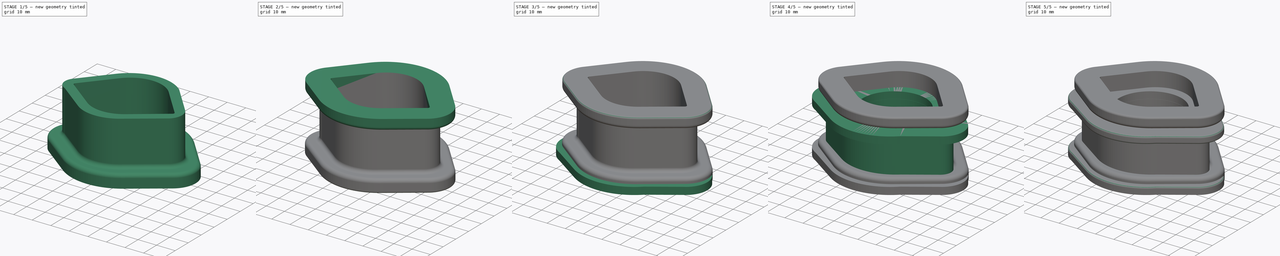
[diagram: build sequence overview — one tinted view per stage of 5, left to right]
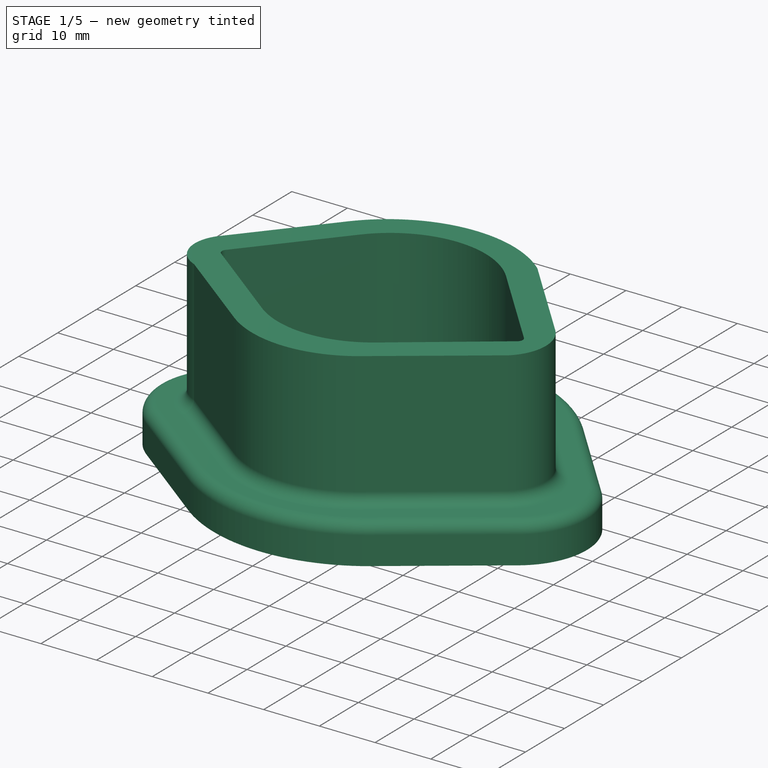
[diagram: stage 1 of 5 — iso view after this stage's code; geometry added in this stage tinted green]
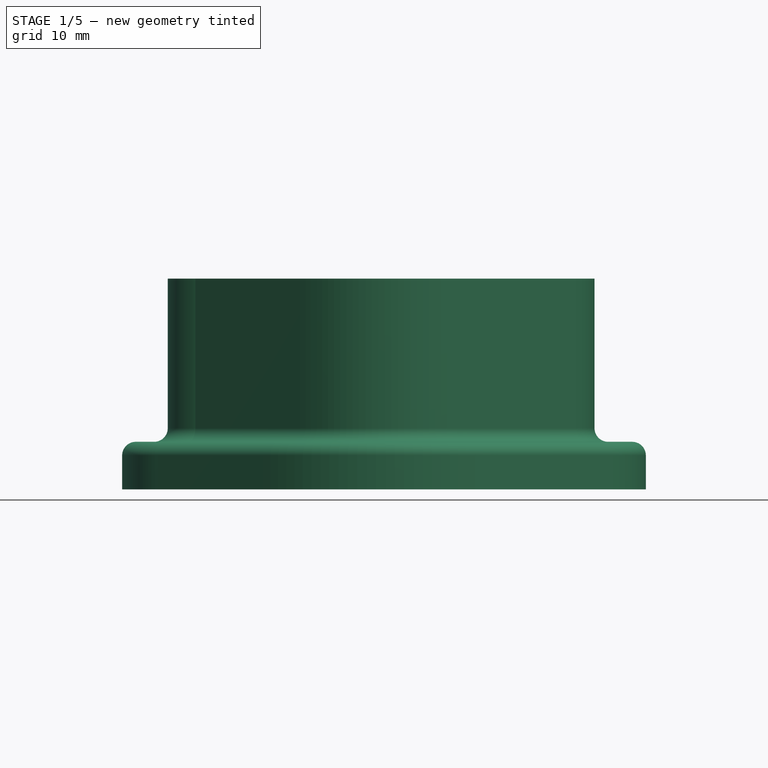
[diagram: stage 1 of 5 — front view after this stage's code; geometry added in this stage tinted green]
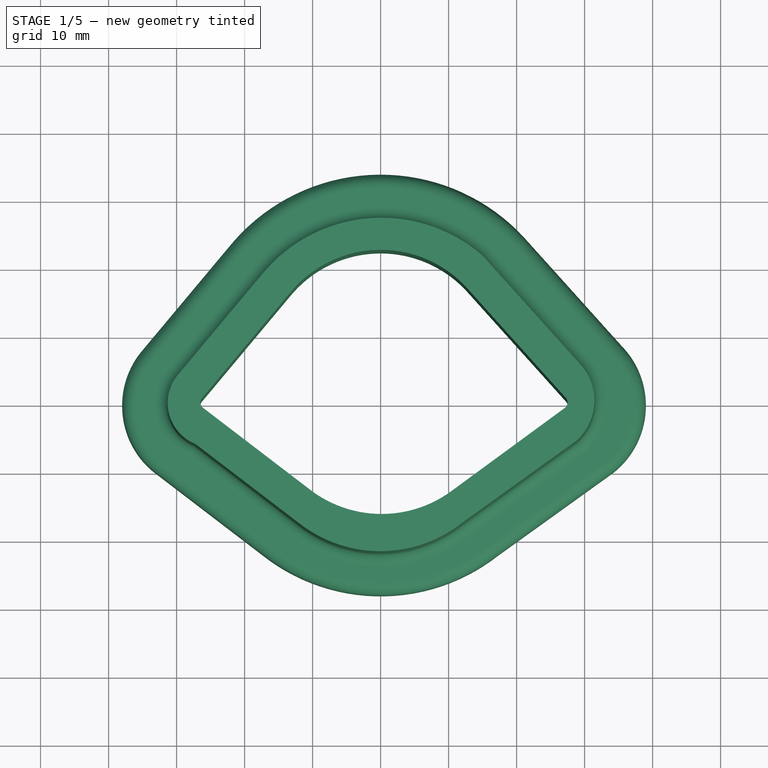
[diagram: stage 1 of 5 — top view after this stage's code; geometry added in this stage tinted green]
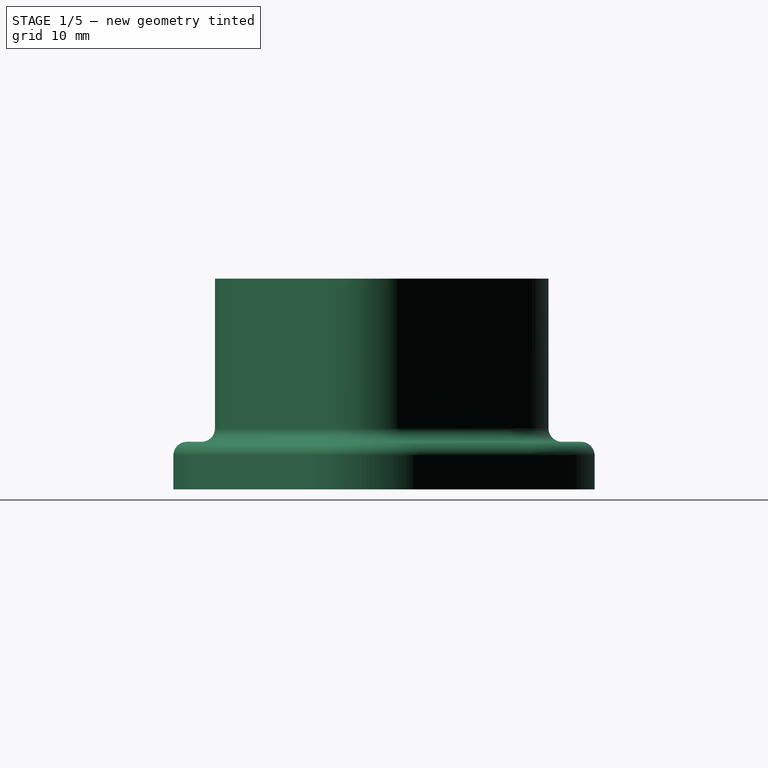
[diagram: stage 1 of 5 — right view after this stage's code; geometry added in this stage tinted green]
FCSTD DOCUMENT  (FreeCAD 1.0R39109 (Git))
Label: 14-703-BL NIS RACK & PINION 74-78 260,280Z
License: All rights reserved
LicenseURL: https://en.wikipedia.org/wiki/All_rights_reserved
objects: PartDesign::Fillet×7, Sketcher::SketchObject×5, PartDesign::Pad×5, PartDesign::Body×3, PartDesign::Hole×1, PartDesign::FeatureBase×1, PartDesign::Boolean×1
note: 56 computed .brp shape members not serialized (recipe doc carries the construction recipe); baked Part::Feature solids carry a one-line shape summary decoded from their .brp

FEATURE [PartDesign::Body] Body  label="Bushing 1"
  AllowCompound = false
  Group = -> [Sketch,Pad,Sketch001,Pad001,Hole,Boolean,Fillet,Fillet001,Fillet002]
  Origin = -> Origin
  Tip = -> Fillet002
FEATURE [Sketcher::SketchObject] Sketch003
  ArcFitTolerance = 1e-06
  AttachmentSupport = -> [XY_Plane002]
  FullyConstrained = false
  MakeInternals = false
  MapMode = 5
  sketch-geometry (16):
    g0: ArcOfCircle CenterX=0 CenterY=5.26 CenterZ=0 NormalX=0 NormalY=0 NormalZ=1 AngleXU=0 Radius=17.185 StartAngle=0.732514 EndAngle=2.44503
    g1: ArcOfCircle CenterX=0 CenterY=1.39 CenterZ=0 NormalX=0 NormalY=0 NormalZ=1 AngleXU=0 Radius=17.595 StartAngle=4.0595 EndAngle=5.33559
    g2: ArcOfCircle CenterX=-25.5 CenterY=0 CenterZ=0 NormalX=0 NormalY=0 NormalZ=1 AngleXU=0 Radius=1 StartAngle=2.44503 EndAngle=4.0595
    g3: ArcOfCircle CenterX=26.5 CenterY=0 CenterZ=0 NormalX=0 NormalY=0 NormalZ=1 AngleXU=0 Radius=1 StartAngle=5.33559 EndAngle=7.02508
    g4: LineSegment StartX=-26.267 StartY=0.641588 StartZ=0 EndX=-13.1817 EndY=16.2857 EndZ=0
    g5: LineSegment StartX=-26.1075 StartY=-0.794331 StartZ=0 EndX=-10.6887 EndY=-12.5862 EndZ=0
    g6: LineSegment StartX=10.269 StartY=-12.8974 StartZ=0 EndX=27.0836 EndY=-0.812017 EndZ=0
    g7: LineSegment StartX=27.2372 StartY=0.675687 StartZ=0 EndX=12.777 EndY=16.7523 EndZ=0
    g8: LineSegment StartX=-35.3614 StartY=7.69315 StartZ=0 EndX=-22.2761 EndY=23.3373 EndZ=0
    g9: LineSegment StartX=21.0423 StartY=24.7595 StartZ=0 EndX=35.5025 EndY=8.68289 EndZ=0
    g10: LineSegment StartX=34.1479 StartY=-9.89689 StartZ=0 EndX=17.3333 EndY=-21.9823 EndZ=0
    g11: LineSegment StartX=-32.7552 StartY=-10.1879 StartZ=0 EndX=-17.3365 EndY=-21.9798 EndZ=0
    g12: ArcOfCircle CenterX=0 CenterY=5.26 CenterZ=0 NormalX=0 NormalY=0 NormalZ=1 AngleXU=0 Radius=28.6882 StartAngle=0.747362 EndAngle=2.45987
    g13: ArcOfCircle CenterX=-25.5 CenterY=0 CenterZ=0 NormalX=0 NormalY=0 NormalZ=1 AngleXU=0 Radius=12.5073 StartAngle=2.47909 EndAngle=4.09356
    g14: ArcOfCircle CenterX=0 CenterY=0 CenterZ=0 NormalX=0 NormalY=0 NormalZ=1 AngleXU=0 Radius=27.994 StartAngle=4.04455 EndAngle=5.38008
    g15: ArcOfCircle CenterX=26.5 CenterY=0 CenterZ=0 NormalX=0 NormalY=0 NormalZ=1 AngleXU=0 Radius=12.5075 StartAngle=5.3703 EndAngle=7.05051
  constraints (44):
    c: PointOnObject(g2,g-1)
    c: PointOnObject(g3,g-1)
    c: Vertical(g-1,g1)
    c: Vertical(g0,g1)
    c: DistanceX(g2,g-1) = 25.5
    c: DistanceX(g-1,g3) = 26.5
    c: DistanceY(g1,g0) = 3.87
    c: Diameter(g1) = 35.19
    c: Diameter(g0) = 34.37
    c: Diameter(g2) = 2
    c: Diameter(g3) = 2
    c: Distance(g1,g-1) = 1.39
    c: Tangent(g1,g5) = -1.5708
    c: Tangent(g0,g4) = 1.5708
    c: Tangent(g0,g7) = -1.5708
    c: Tangent(g1,g6) = -1.5708
    c: Parallel(g8,g4)
    c: Parallel(g5,g11)
    c: Parallel(g9,g7)
    c: Parallel(g10,g6)
    c: Equal(g8,g4)
    c: Equal(g9,g7)
    c: Equal(g6,g10)
    c: Equal(g11,g5)
    c: Coincident(g3,g7)
    c: Tangent(g3,g6) = -1.5708
    c: Tangent(g2,g5) = -1.5708
    c: Tangent(g2,g4) = 1.5708
    c: Distance(g4,g8) = 11.5
    c: Distance(g11,g5) = 11.5
    c: Distance(g10,g6) = 11.5
    c: Distance(g7,g9) = 11.5
    c: Coincident(g12,g0)
    c: Coincident(g12,g8)
    c: Coincident(g12,g9)
    c: Coincident(g13,g2)
    c: Coincident(g13,g11)
    c: Coincident(g13,g8)
    c: Coincident(g14,g-1)
    c: Coincident(g14,g11)
    c: Coincident(g14,g10)
    c: Coincident(g15,g3)
    c: Coincident(g15,g9)
    c: Coincident(g15,g10)
FEATURE [PartDesign::Pad] Pad002
  Direction = (0,0,1)
  Length = 7
  Length2 = 10
  Profile = -> Sketch003
  ReferenceAxis = -> Sketch003 [N_Axis]
  Refine = true
  Suppressed = false
  Type = 0
FEATURE [Sketcher::SketchObject] Sketch005
  ArcFitTolerance = 1e-06
  AttachmentSupport = -> [Pad002]
  ExternalGeometry = -> [Pad002]
  FullyConstrained = false
  MakeInternals = false
  MapMode = 5
  Placement = pos=(0,0,7) rot=(0,0,1;0rad)
  sketch-geometry (16):
    g0: LineSegment StartX=-29.7959 StartY=4.05995 StartZ=0 EndX=-17.2617 EndY=19.0452 EndZ=0
    g1: LineSegment StartX=14.9729 StartY=21.6381 StartZ=0 EndX=29.4332 EndY=5.56143 EndZ=0
    g2: LineSegment StartX=28.8211 StartY=-5.59756 StartZ=0 EndX=12.0065 EndY=-17.683 EndZ=0
    g3: LineSegment StartX=-11.825 StartY=-17.886 StartZ=0 EndX=-27.2438 EndY=-6.09404 EndZ=0
    g4: ArcOfCircle CenterX=-24.8338 CenterY=-0.0905718 CenterZ=0 NormalX=0 NormalY=0 NormalZ=1 AngleXU=0 Radius=6.46913 StartAngle=2.44503 EndAngle=4.33065
    g5: ArcOfCircle CenterX=0.130029 CenterY=4.4981 CenterZ=0 NormalX=0 NormalY=0 NormalZ=1 AngleXU=0 Radius=22.6736 StartAngle=0.857096 EndAngle=2.44503
    g6: ArcOfCircle CenterX=23.5689 CenterY=0.286791 CenterZ=0 NormalX=0 NormalY=0 NormalZ=1 AngleXU=0 Radius=7.88742 StartAngle=5.44109 EndAngle=7.0157
    g7: ArcOfCircle CenterX=-0.0396243 CenterY=-2.47574 CenterZ=0 NormalX=0 NormalY=0 NormalZ=1 AngleXU=0 Radius=19.4003 StartAngle=4.0595 EndAngle=5.38231
    g8: LineSegment StartX=-26.267 StartY=0.641588 StartZ=0 EndX=-13.1817 EndY=16.2857 EndZ=0
    g9: ArcOfCircle CenterX=-1.024e-13 CenterY=5.26 CenterZ=0 NormalX=0 NormalY=0 NormalZ=1 AngleXU=0 Radius=17.185 StartAngle=0.732514 EndAngle=2.44503
    g10: LineSegment StartX=12.777 StartY=16.7523 StartZ=0 EndX=27.2372 EndY=0.675687 EndZ=0
    g11: ArcOfCircle CenterX=26.4874 CenterY=0.00129896 CenterZ=0 NormalX=0 NormalY=0 NormalZ=1 AngleXU=0 Radius=1.00844 StartAngle=5.34497 EndAngle=7.0157
    g12: LineSegment StartX=27.0836 StartY=-0.812017 StartZ=0 EndX=10.3839 EndY=-13.0541 EndZ=0
    g13: ArcOfCircle CenterX=0.152286 CenterY=0.903016 CenterZ=0 NormalX=0 NormalY=0 NormalZ=1 AngleXU=0 Radius=17.3057 StartAngle=4.03541 EndAngle=5.34497
    g14: LineSegment StartX=-10.6887 StartY=-12.5862 StartZ=0 EndX=-26.1075 EndY=-0.794331 EndZ=0
    g15: ArcOfCircle CenterX=-25.5 CenterY=-1.609e-13 CenterZ=0 NormalX=0 NormalY=0 NormalZ=1 AngleXU=0 Radius=1 StartAngle=2.44503 EndAngle=4.0595
  constraints (21):
    c: Tangent(g0,g4) = 1.5708
    c: Coincident(g4,g3)
    c: Tangent(g0,g5) = 1.5708
    c: Coincident(g5,g1)
    c: Tangent(g1,g6) = 1.5708
    c: Coincident(g6,g2)
    c: Tangent(g3,g7) = 1.5708
    c: Coincident(g7,g2)
    c: Tangent(g8,g9) = 1.5708
    c: Coincident(g9,g-4)
    c: Coincident(g9,g10)
    c: Coincident(g10,g-5)
    c: Tangent(g10,g11) = 1.5708
    c: Coincident(g11,g-6)
    c: Tangent(g11,g12) = 1.5708
    c: Tangent(g12,g13) = 1.5708
    c: Coincident(g13,g-8)
    c: Coincident(g13,g14)
    c: Coincident(g14,g-9)
    c: Tangent(g14,g15) = 1.5708
    c: Coincident(g15,g8)
FEATURE [PartDesign::Pad] Pad003
  BaseFeature = -> Pad002
  Direction = (0,0,1)
  Length = 24
  Length2 = 10
  Profile = -> Sketch005
  ReferenceAxis = -> Sketch005 [N_Axis]
  Refine = true
  Suppressed = false
  Type = 0
FEATURE [PartDesign::Fillet] Fillet003
  Base = -> Pad003 [Face5]
  BaseFeature = -> Pad003
  Radius = 2
  Refine = true
  SupportTransform = false
  Suppressed = false
  UseAllEdges = false
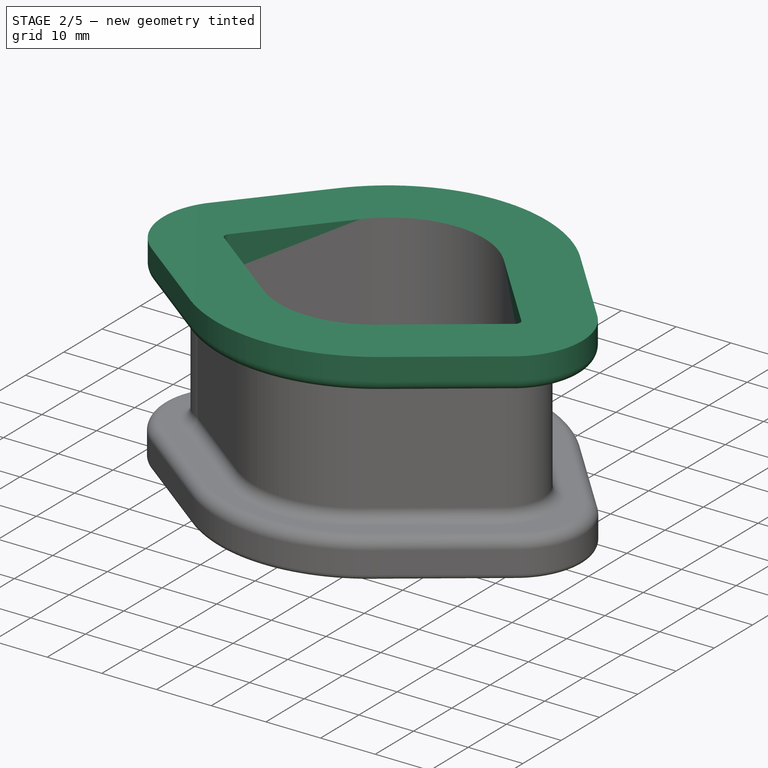
[diagram: stage 2 of 5 — iso view after this stage's code; geometry added in this stage tinted green]
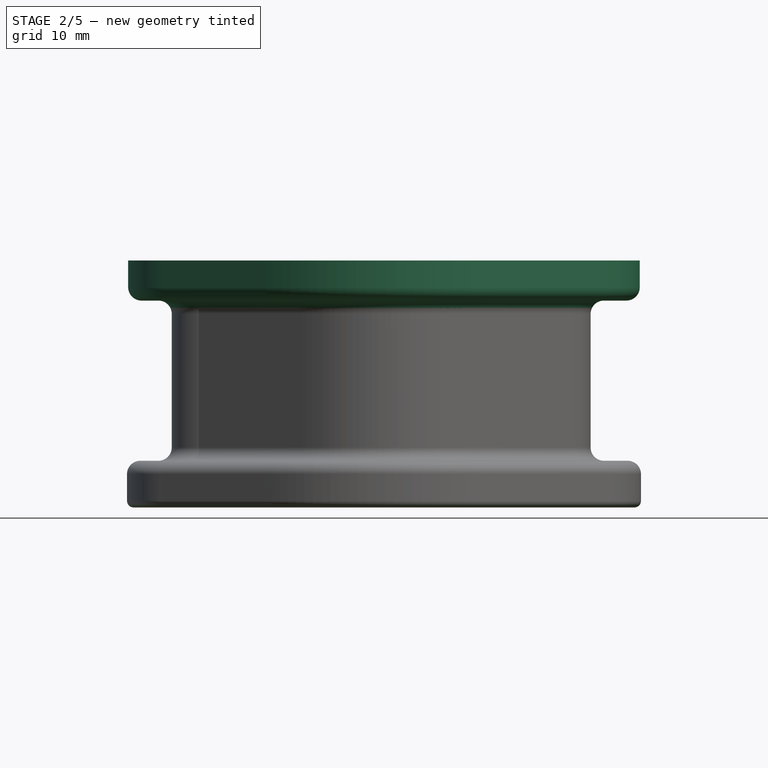
[diagram: stage 2 of 5 — front view after this stage's code; geometry added in this stage tinted green]
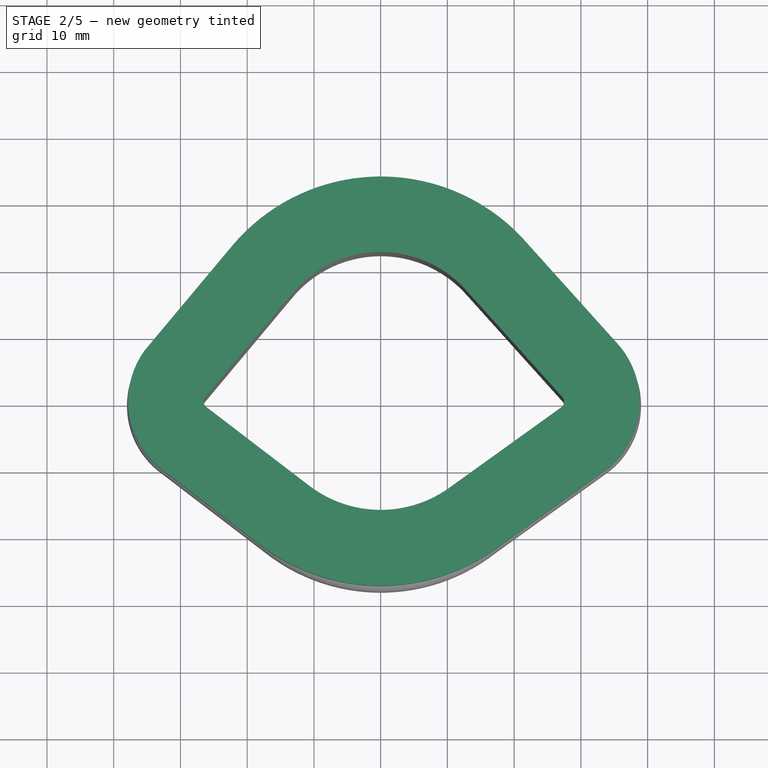
[diagram: stage 2 of 5 — top view after this stage's code; geometry added in this stage tinted green]
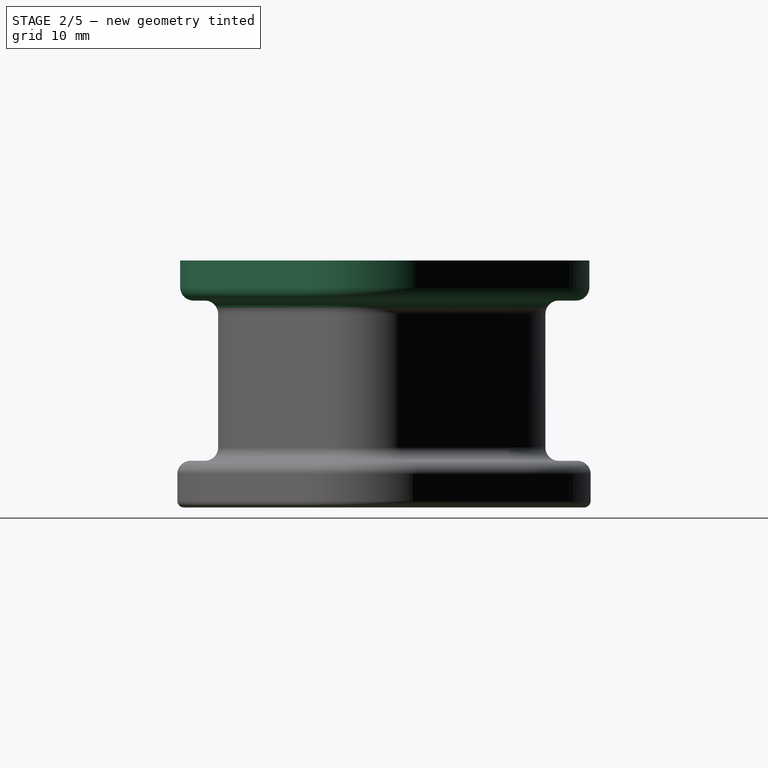
[diagram: stage 2 of 5 — right view after this stage's code; geometry added in this stage tinted green]
FEATURE [PartDesign::Fillet] Fillet004
  Base = -> Fillet003 [Edge14]
  BaseFeature = -> Fillet003
  Radius = 1
  Refine = true
  SupportTransform = false
  Suppressed = false
  UseAllEdges = false
FEATURE [Sketcher::SketchObject] Sketch006
  ArcFitTolerance = 1e-06
  AttachmentSupport = -> [Fillet004]
  ExternalGeometry = -> [Sketch003]
  FullyConstrained = false
  MakeInternals = false
  MapMode = 5
  Placement = pos=(0,0,31) rot=(0,0,1;0rad)
  sketch-geometry (16):
    g0: LineSegment StartX=-35.3614 StartY=7.69315 StartZ=0 EndX=-22.2761 EndY=23.3373 EndZ=0
    g1: ArcOfCircle CenterX=0.0187464 CenterY=4.68904 CenterZ=0 NormalX=0 NormalY=0 NormalZ=1 AngleXU=0 Radius=29.0657 StartAngle=0.762209 EndAngle=2.44503
    g2: LineSegment StartX=21.0423 StartY=24.7595 StartZ=0 EndX=35.5025 EndY=8.68289 EndZ=0
    g3: ArcOfCircle CenterX=25.8979 CenterY=0.043902 CenterZ=0 NormalX=0 NormalY=0 NormalZ=1 AngleXU=0 Radius=12.9183 StartAngle=5.40511 EndAngle=7.0157
    g4: LineSegment StartX=34.1479 StartY=-9.89689 StartZ=0 EndX=17.3333 EndY=-21.9823 EndZ=0
    g5: ArcOfCircle CenterX=0.000154501 CenterY=2.13348 CenterZ=0 NormalX=0 NormalY=0 NormalZ=1 AngleXU=0 Radius=29.6986 StartAngle=4.08905 EndAngle=5.33559
    g6: LineSegment StartX=-17.3365 StartY=-21.9798 StartZ=0 EndX=-32.7552 EndY=-10.1879 EndZ=0
    g7: ArcOfCircle CenterX=-24.8965 CenterY=0.0879565 CenterZ=0 NormalX=0 NormalY=0 NormalZ=1 AngleXU=0 Radius=12.9365 StartAngle=2.51315 EndAngle=4.0595
    g8: LineSegment StartX=-26.267 StartY=0.641588 StartZ=0 EndX=-13.1817 EndY=16.2857 EndZ=0
    g9: ArcOfCircle CenterX=-6.82e-14 CenterY=5.26 CenterZ=0 NormalX=0 NormalY=0 NormalZ=1 AngleXU=0 Radius=17.185 StartAngle=0.732514 EndAngle=2.44503
    g10: LineSegment StartX=12.777 StartY=16.7523 StartZ=0 EndX=27.2372 EndY=0.675694 EndZ=0
    g11: ArcOfCircle CenterX=26.4874 CenterY=0.00130033 CenterZ=0 NormalX=0 NormalY=0 NormalZ=1 AngleXU=0 Radius=1.00845 StartAngle=5.34498 EndAngle=7.0157
    g12: LineSegment StartX=27.0836 StartY=-0.812017 StartZ=0 EndX=10.269 EndY=-12.8974 EndZ=0
    g13: ArcOfCircle CenterX=1.1911e-12 CenterY=1.39 CenterZ=0 NormalX=0 NormalY=0 NormalZ=1 AngleXU=0 Radius=17.595 StartAngle=4.0595 EndAngle=5.33559
    g14: LineSegment StartX=-10.6887 StartY=-12.5862 StartZ=0 EndX=-26.1075 EndY=-0.794333 EndZ=0
    g15: ArcOfCircle CenterX=-25.5 CenterY=6.6674e-07 CenterZ=0 NormalX=0 NormalY=0 NormalZ=1 AngleXU=0 Radius=1 StartAngle=2.44503 EndAngle=4.0595
  constraints (28):
    c: Coincident(g-5,g0)
    c: Coincident(g0,g-4)
    c: Tangent(g0,g1) = 1.5708
    c: Coincident(g1,g-3)
    c: Coincident(g1,g2)
    c: Coincident(g2,g-9)
    c: Tangent(g2,g3) = 1.5708
    c: Coincident(g3,g-9)
    c: Coincident(g3,g4)
    c: Coincident(g4,g-8)
    c: Tangent(g4,g5) = 1.5708
    c: Coincident(g5,g-7)
    c: Coincident(g5,g6)
    c: Coincident(g6,g-6)
    c: Tangent(g6,g7) = 1.5708
    c: Coincident(g7,g0)
    c: Tangent(g8,g9) = 1.5708
    c: Coincident(g9,g-16)
    c: Tangent(g9,g10) = 1.5708
    c: Tangent(g10,g11) = 1.5708
    c: Coincident(g11,g-12)
    c: Coincident(g11,g12)
    c: Coincident(g12,g-13)
    c: Tangent(g12,g13) = 1.5708
    c: Coincident(g13,g-14)
    c: Tangent(g13,g14) = 1.5708
    c: Tangent(g14,g15) = 1.5708
    c: Coincident(g15,g8)
FEATURE [PartDesign::Pad] Pad004
  BaseFeature = -> Fillet004
  Direction = (0,0,1)
  Length = 6
  Length2 = 10
  Profile = -> Sketch006
  ReferenceAxis = -> Sketch006 [N_Axis]
  Refine = true
  Suppressed = false
  Type = 0
FEATURE [PartDesign::Fillet] Fillet005
  Base = -> Pad004 [Face57]
  BaseFeature = -> Pad004
  Radius = 2
  Refine = true
  SupportTransform = false
  Suppressed = false
  UseAllEdges = false
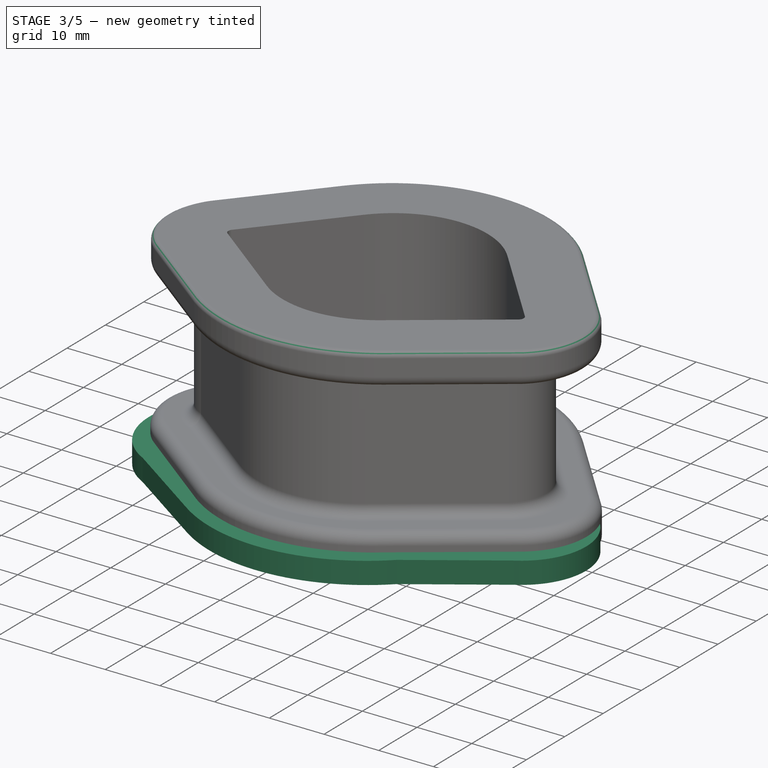
[diagram: stage 3 of 5 — iso view after this stage's code; geometry added in this stage tinted green]
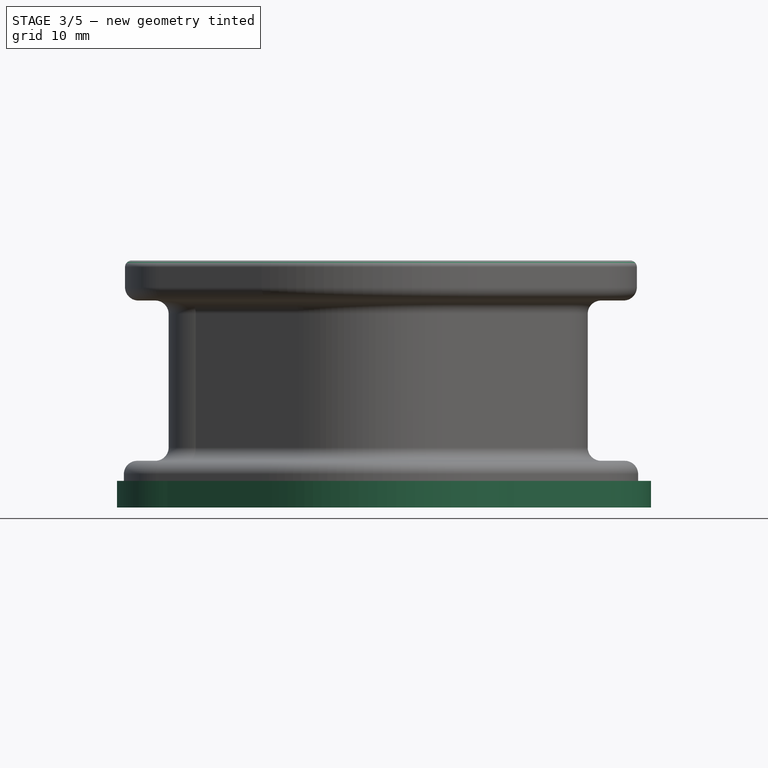
[diagram: stage 3 of 5 — front view after this stage's code; geometry added in this stage tinted green]
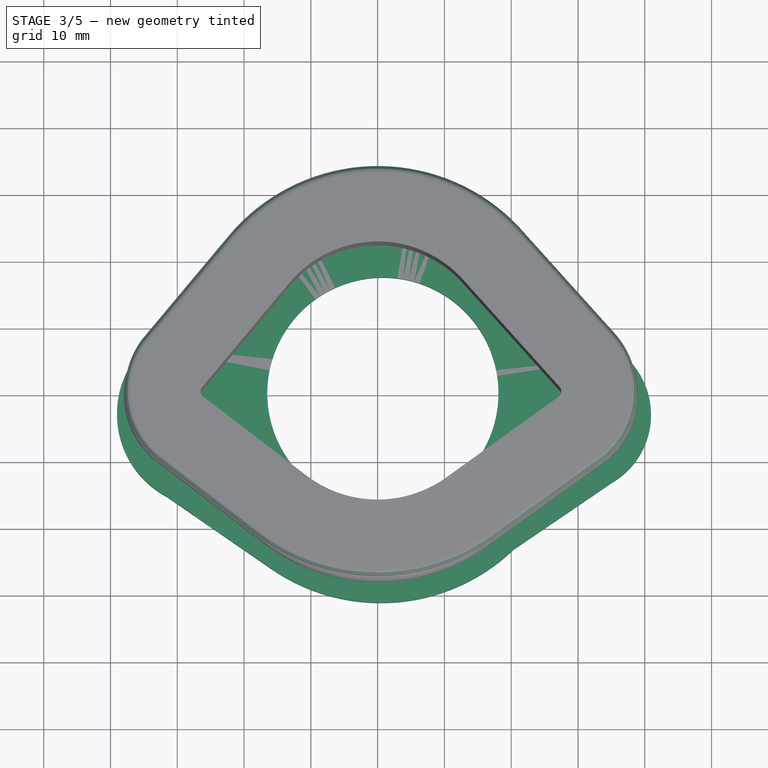
[diagram: stage 3 of 5 — top view after this stage's code; geometry added in this stage tinted green]
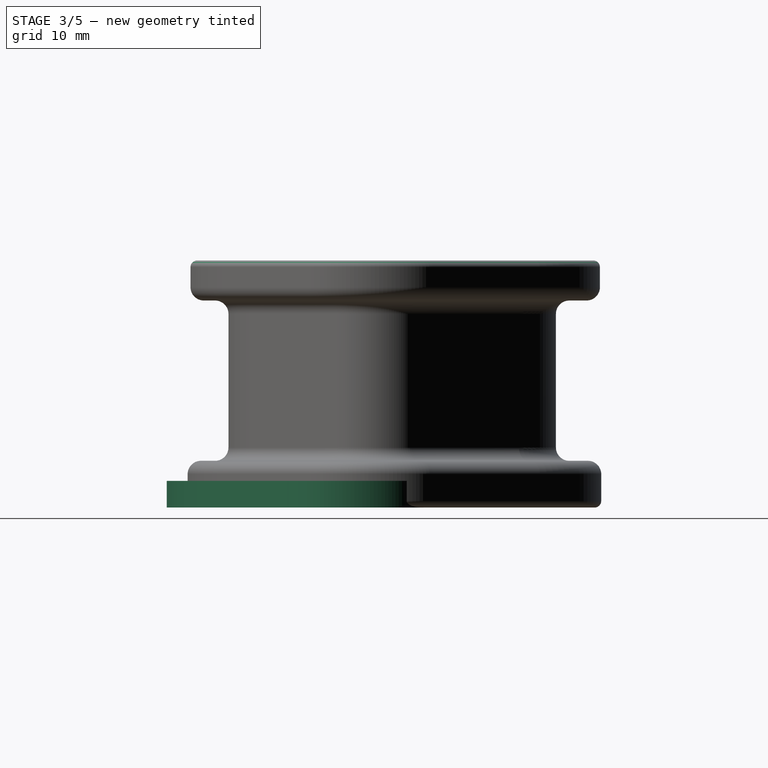
[diagram: stage 3 of 5 — right view after this stage's code; geometry added in this stage tinted green]
FEATURE [Sketcher::SketchObject] Sketch
  ArcFitTolerance = 1e-06
  AttachmentSupport = -> [XY_Plane]
  FullyConstrained = false
  MakeInternals = false
  MapMode = 5
  sketch-geometry (9):
    g0: Circle CenterX=0.781322 CenterY=0.310392 CenterZ=0 NormalX=0 NormalY=0 NormalZ=1 AngleXU=0 Radius=17.3108
    g1: ArcOfCircle CenterX=-24.9447 CenterY=-2.77913 CenterZ=0 NormalX=0 NormalY=0 NormalZ=1 AngleXU=0 Radius=14.0906 StartAngle=2.3431 EndAngle=4.22746
    g2: ArcOfCircle CenterX=29.1522 CenterY=-2.91876 CenterZ=0 NormalX=0 NormalY=0 NormalZ=1 AngleXU=0 Radius=11.7866 StartAngle=5.23374 EndAngle=7.12035
    g3: ArcOfCircle CenterX=0.518395 CenterY=2.42458 CenterZ=0 NormalX=0 NormalY=0 NormalZ=1 AngleXU=0 Radius=28.5676 StartAngle=0.771274 EndAngle=2.37918
    g4: ArcOfCircle CenterX=0.452187 CenterY=-2.30505 CenterZ=0 NormalX=0 NormalY=0 NormalZ=1 AngleXU=0 Radius=28.806 StartAngle=4.10833 EndAngle=5.4769
    g5: LineSegment StartX=-34.777 StartY=7.31398 StartZ=0 EndX=-20.1409 EndY=22.1553 EndZ=0
    g6: LineSegment StartX=-31.513 StartY=-15.2452 StartZ=0 EndX=-15.9093 EndY=-26.0135 EndZ=0
    g7: LineSegment StartX=20.3912 StartY=-23.095 StartZ=0 EndX=35.0226 EndY=-13.1395 EndZ=0
    g8: LineSegment StartX=21.002 StartY=22.3376 StartZ=0 EndX=37.0442 EndY=5.83575 EndZ=0
  constraints (8):
    c: Coincident(g1,g5)
    c: Coincident(g1,g6)
    c: Tangent(g4,g6) = -1.5708
    c: Coincident(g4,g7)
    c: Coincident(g2,g7)
    c: Tangent(g3,g8) = 1.5708
    c: Coincident(g2,g8)
    c: Coincident(g5,g3)
FEATURE [PartDesign::Pad] Pad
  Direction = (0,0,1)
  Length = 4
  Length2 = 10
  Profile = -> Sketch
  ReferenceAxis = -> Sketch [N_Axis]
  Refine = true
  Suppressed = false
  Type = 0
FEATURE [PartDesign::FeatureBase] Clone
  BaseFeature = -> Pad
  Suppressed = false
FEATURE [PartDesign::Fillet] Fillet006
  Base = -> Fillet005 [Edge120]
  BaseFeature = -> Fillet005
  Radius = 1
  Refine = true
  SupportTransform = false
  Suppressed = false
  UseAllEdges = false
FEATURE [PartDesign::Body] Body002  label="Bushing 2"
  AllowCompound = false
  Group = -> [Sketch003,Pad002,Sketch005,Pad003,Fillet003,Fillet004,Sketch006,Pad004,Fillet005,Fillet006]
  Origin = -> Origin002
  Placement = pos=(88,0,0) rot=(0,0,1;0rad)
  Tip = -> Fillet006
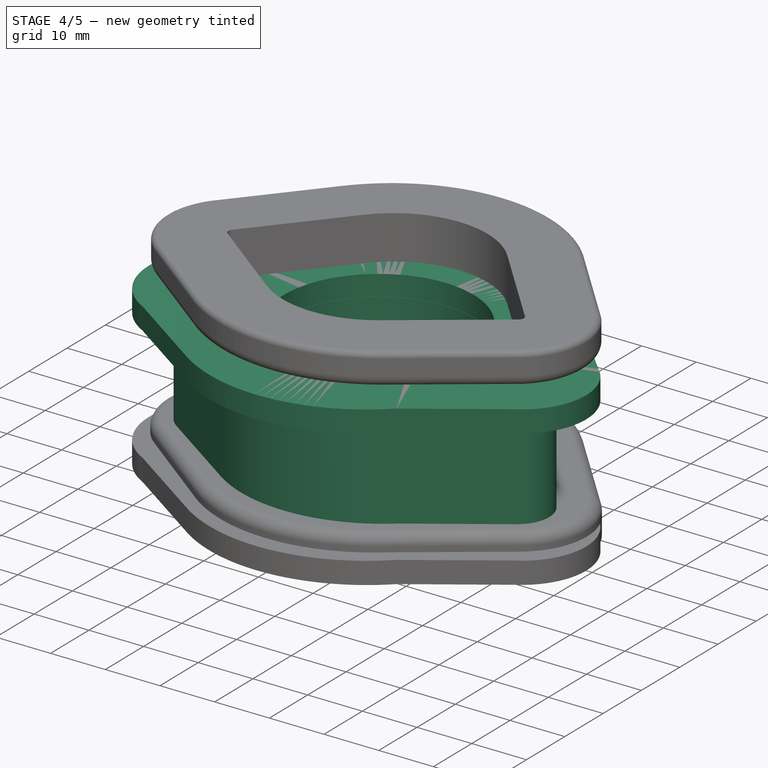
[diagram: stage 4 of 5 — iso view after this stage's code; geometry added in this stage tinted green]
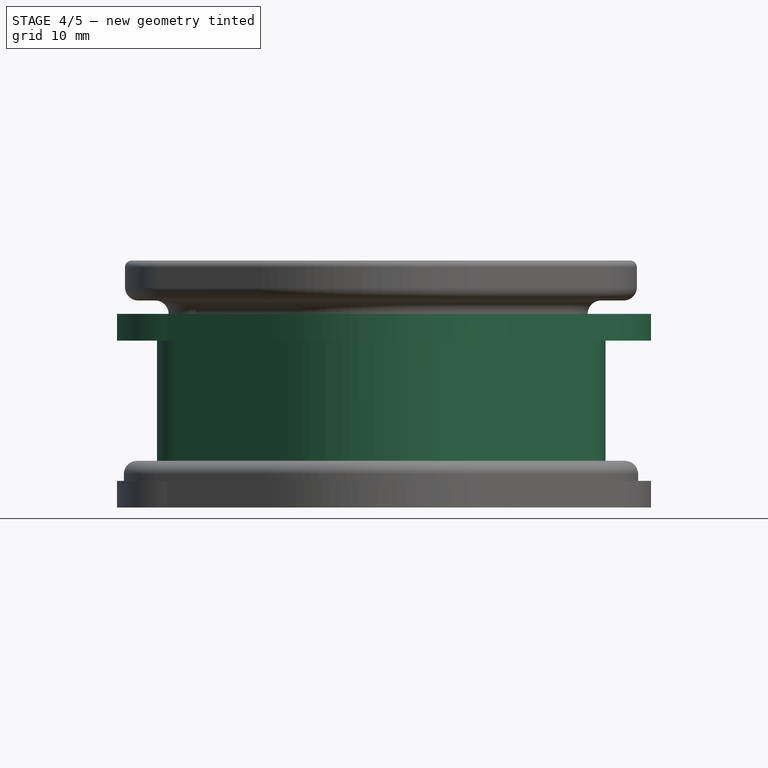
[diagram: stage 4 of 5 — front view after this stage's code; geometry added in this stage tinted green]
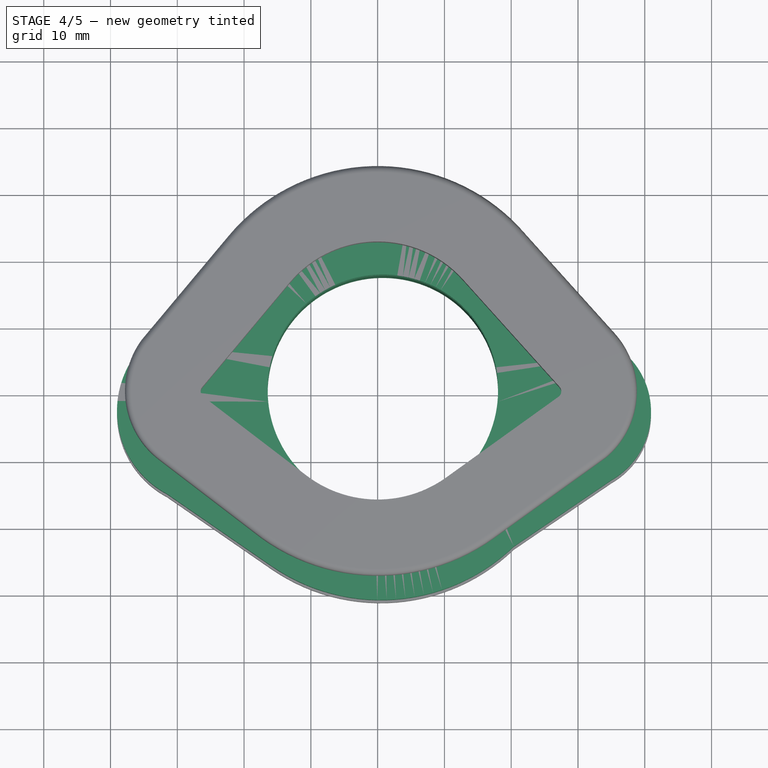
[diagram: stage 4 of 5 — top view after this stage's code; geometry added in this stage tinted green]
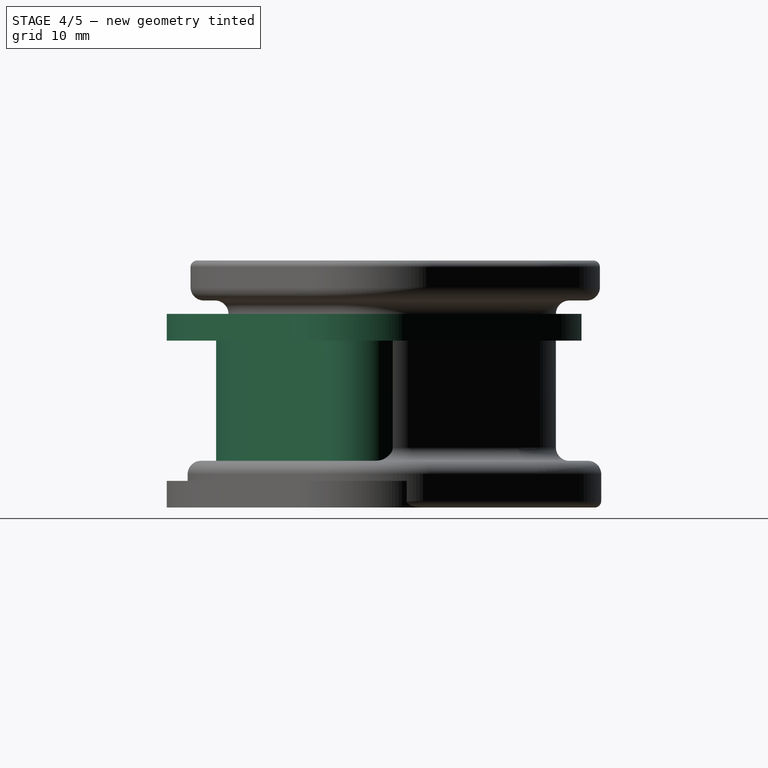
[diagram: stage 4 of 5 — right view after this stage's code; geometry added in this stage tinted green]
FEATURE [Sketcher::SketchObject] Sketch001
  ArcFitTolerance = 1e-06
  AttachmentSupport = -> [Pad]
  ExternalGeometry = -> [Pad]
  FullyConstrained = false
  MakeInternals = false
  MapMode = 5
  Placement = pos=(0,0,4) rot=(0,0,1;0rad)
  sketch-geometry (9):
    g0: LineSegment StartX=-31.1082 StartY=1.84827 StartZ=0 EndX=-16.4722 EndY=16.6896 EndZ=0
    g1: LineSegment StartX=16.4044 StartY=17.8136 StartZ=0 EndX=32.4466 EndY=1.31179 EndZ=0
    g2: LineSegment StartX=-30.145 StartY=-8.35239 StartZ=0 EndX=-14.5413 EndY=-19.1207 EndZ=0
    g3: LineSegment StartX=16.9004 StartY=-17.6687 StartZ=0 EndX=31.5317 EndY=-7.71327 EndZ=0
    g4: LineSegment [constr] StartX=-31.513 StartY=-15.2452 StartZ=0 EndX=-30.145 EndY=-8.35239 EndZ=0
    g5: ArcOfCircle CenterX=0.475783 CenterY=2.34491 CenterZ=0 NormalX=0 NormalY=0 NormalZ=1 AngleXU=0 Radius=22.2037 StartAngle=0.770751 EndAngle=2.43919
    g6: ArcOfCircle CenterX=-26.3463 CenterY=-2.84786 CenterZ=0 NormalX=0 NormalY=0 NormalZ=1 AngleXU=0 Radius=6.68806 StartAngle=2.36316 EndAngle=4.10833
    g7: ArcOfCircle CenterX=0.224961 CenterY=2.27626 CenterZ=0 NormalX=0 NormalY=0 NormalZ=1 AngleXU=0 Radius=25.9975 StartAngle=4.10833 EndAngle=5.40874
    g8: ArcOfCircle CenterX=28.1999 CenterY=-2.81661 CenterZ=0 NormalX=0 NormalY=0 NormalZ=1 AngleXU=0 Radius=5.92268 StartAngle=5.30985 EndAngle=7.05446
  constraints (22):
    c: Equal(g-10,g0)
    c: Equal(g1,g-4)
    c: Parallel(g1,g-4)
    c: Parallel(g-10,g0)
    c: Parallel(g2,g-8)
    c: Equal(g2,g-8)
    c: Parallel(g3,g-6)
    c: Equal(g3,g-6)
    c: Coincident(g4,g-9)
    c: Coincident(g4,g2)
    c: Distance(g0,g-10) = 6.45
    c: Distance(g2,g-8) = 6.45
    c: Distance(g3,g-6) = 6.45
    c: Distance(g1,g-4) = 6.45
    c: Coincident(g5,g0)
    c: Coincident(g5,g1)
    c: Coincident(g7,g3)
    c: Tangent(g8,g1) = 1.5708
    c: Tangent(g8,g3) = -1.5708
    c: Tangent(g7,g2) = -1.5708
    c: Tangent(g6,g2) = -1.5708
    c: Tangent(g6,g0) = 1.5708
FEATURE [PartDesign::Pad] Pad001
  BaseFeature = -> Pad
  Direction = (0,0,1)
  Length = 21.25
  Length2 = 10
  Profile = -> Sketch001
  ReferenceAxis = -> Sketch001 [N_Axis]
  Refine = true
  Suppressed = false
  Type = 0
FEATURE [PartDesign::Hole] Hole
  BaseFeature = -> Pad001
  CustomThreadClearance = 0
  Depth = 210.785
  DepthType = 1
  Diameter = 34.5
  DrillForDepth = false
  DrillPoint = 1
  DrillPointAngle = 118
  HoleCutCountersinkAngle = 90
  HoleCutCustomValues = false
  HoleCutDepth = 0
  HoleCutDiameter = 6.1
  HoleCutType = 0
  ModelThread = false
  Profile = -> Pad001 [Face20]
  Refine = true
  Suppressed = false
  Tapered = false
  TaperedAngle = 90
  ThreadClass = 0
  ThreadDepth = 210.785
  ThreadDepthType = 0
  ThreadDirection = 0
  ThreadFit = 0
  ThreadSize = 0
  ThreadType = 0
  Threaded = false
  UseCustomThreadClearance = false
FEATURE [PartDesign::Body] Body001
  AllowCompound = false
  Group = -> [Clone]
  Origin = -> Origin001
  Placement = pos=(0,0,25) rot=(0,0,1;0rad)
  Tip = -> Clone
FEATURE [PartDesign::Boolean] Boolean
  BaseFeature = -> Hole
  Group = -> [Body001]
  Refine = true
  Suppressed = false
  Type = 0
  UsePlacement = true
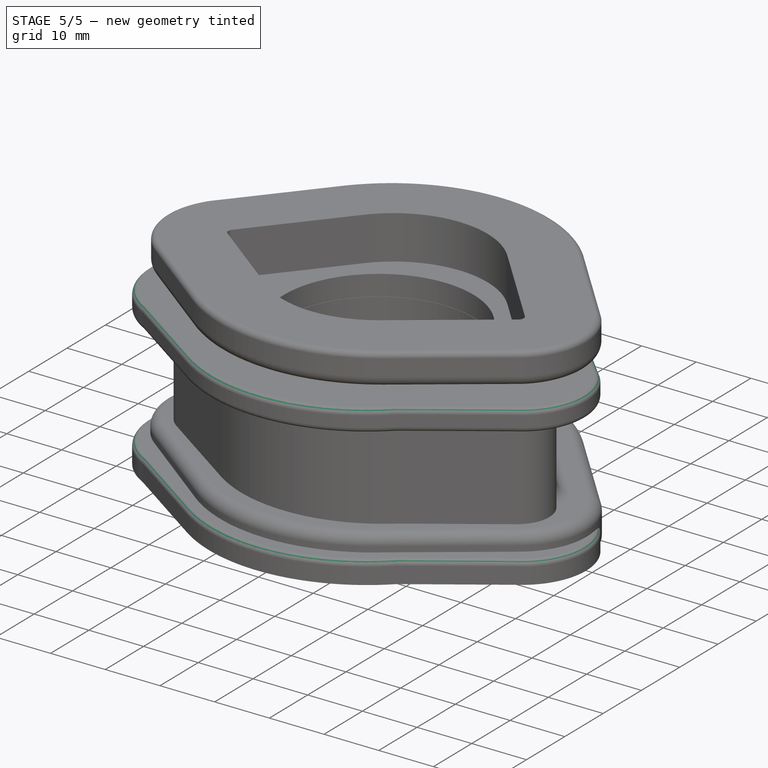
[diagram: stage 5 of 5 — iso view after this stage's code; geometry added in this stage tinted green]
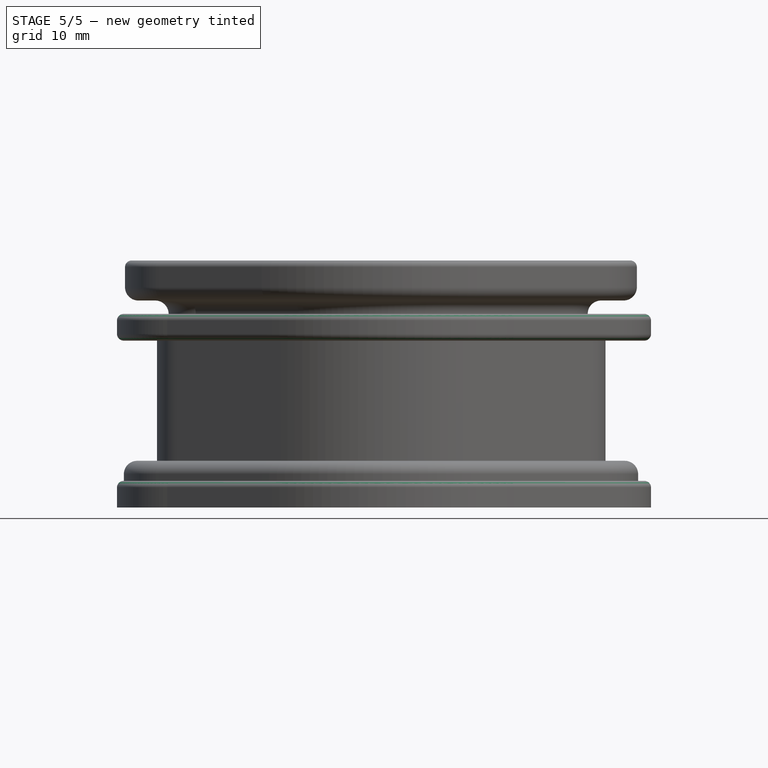
[diagram: stage 5 of 5 — front view after this stage's code; geometry added in this stage tinted green]
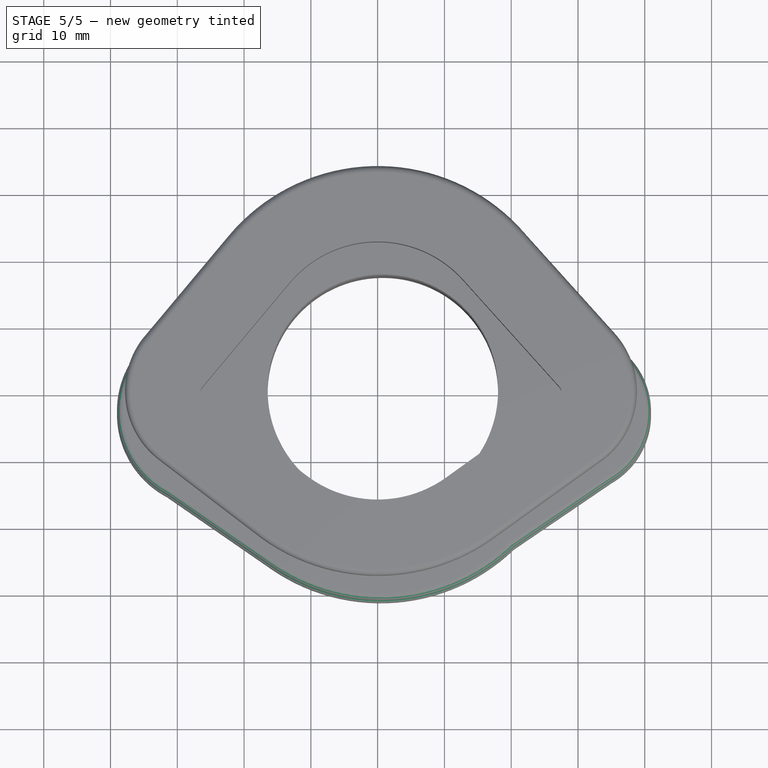
[diagram: stage 5 of 5 — top view after this stage's code; geometry added in this stage tinted green]
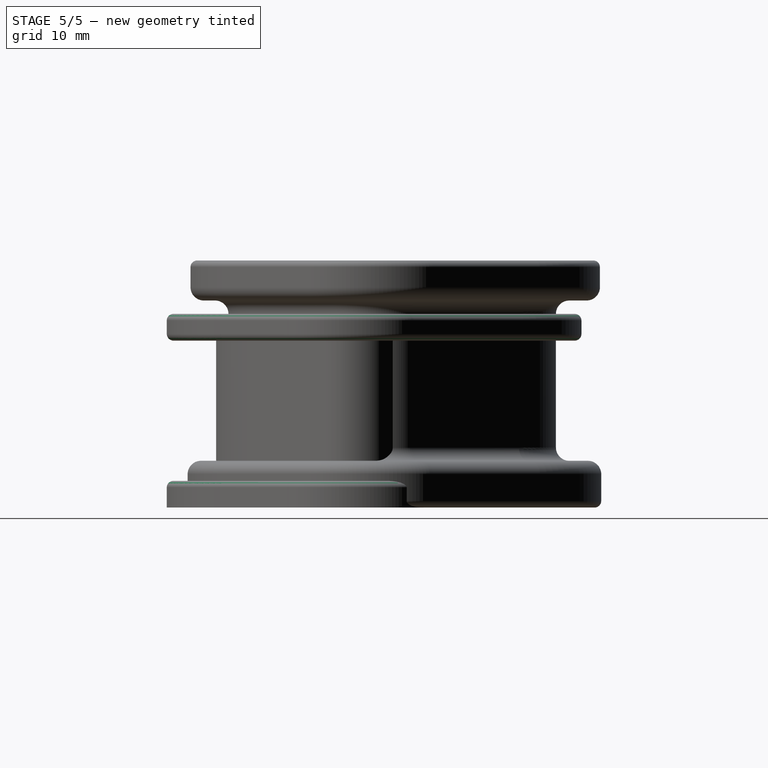
[diagram: stage 5 of 5 — right view after this stage's code; geometry added in this stage tinted green]
FEATURE [PartDesign::Fillet] Fillet
  Base = -> Boolean [Edge19,Edge21,Edge20,Edge18,Edge10,Edge4,Edge7,Edge17]
  BaseFeature = -> Boolean
  Radius = 1
  Refine = true
  SupportTransform = false
  Suppressed = false
  UseAllEdges = false
FEATURE [PartDesign::Fillet] Fillet001
  Base = -> Fillet [Edge71,Edge73,Edge69,Edge70,Edge72,Edge74,Edge76,Edge75]
  BaseFeature = -> Fillet
  Radius = 1
  Refine = true
  SupportTransform = false
  Suppressed = false
  UseAllEdges = false
FEATURE [PartDesign::Fillet] Fillet002
  Base = -> Fillet001 [Edge59,Edge54,Edge50,Edge52,Edge56,Edge60,Edge62,Edge64]
  BaseFeature = -> Fillet001
  Radius = 1
  Refine = true
  SupportTransform = false
  Suppressed = false
  UseAllEdges = false
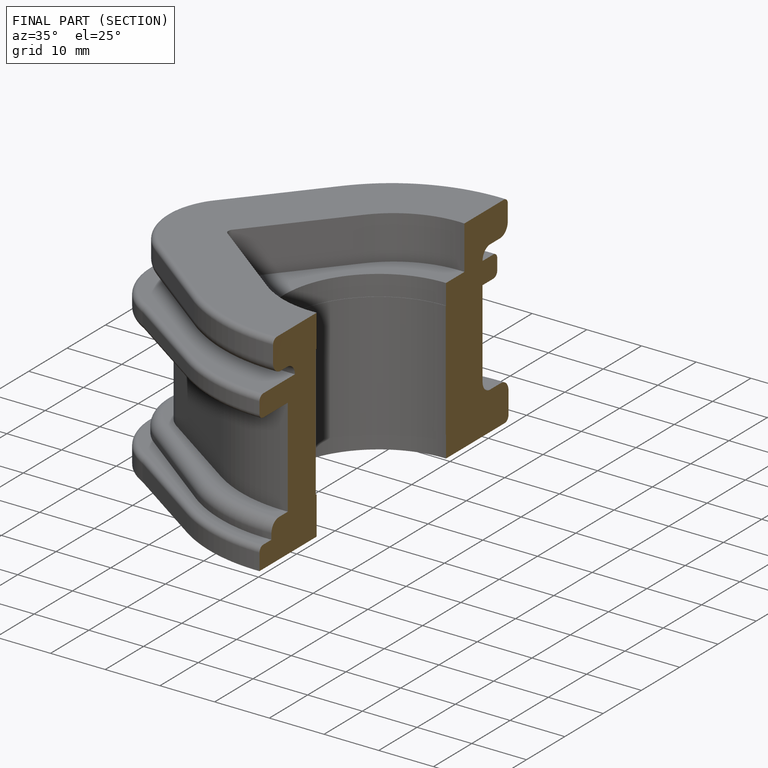
[diagram: finished part — half-section view (interior)]
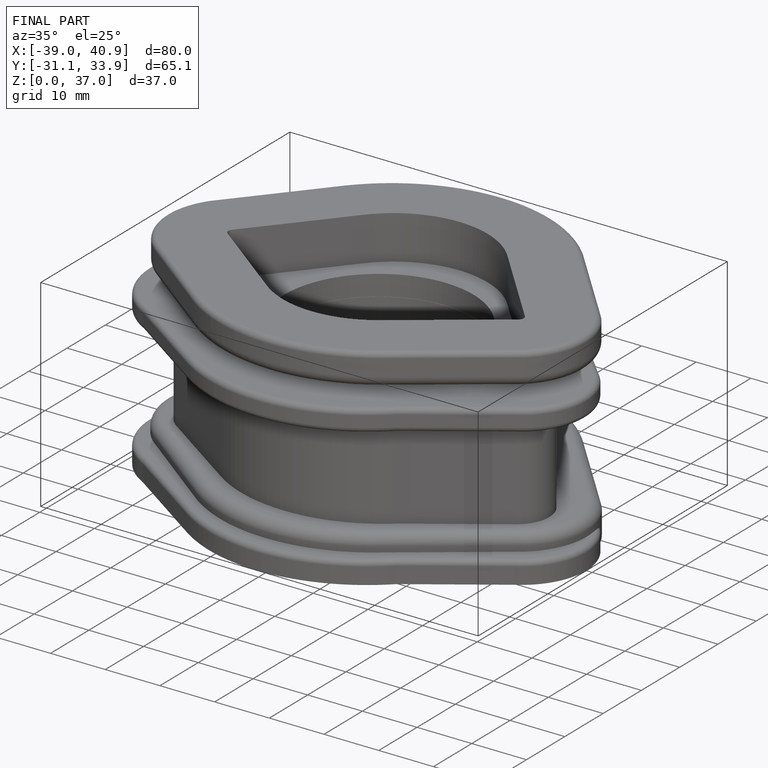
[diagram: finished part — iso view with bounding-box wireframe]
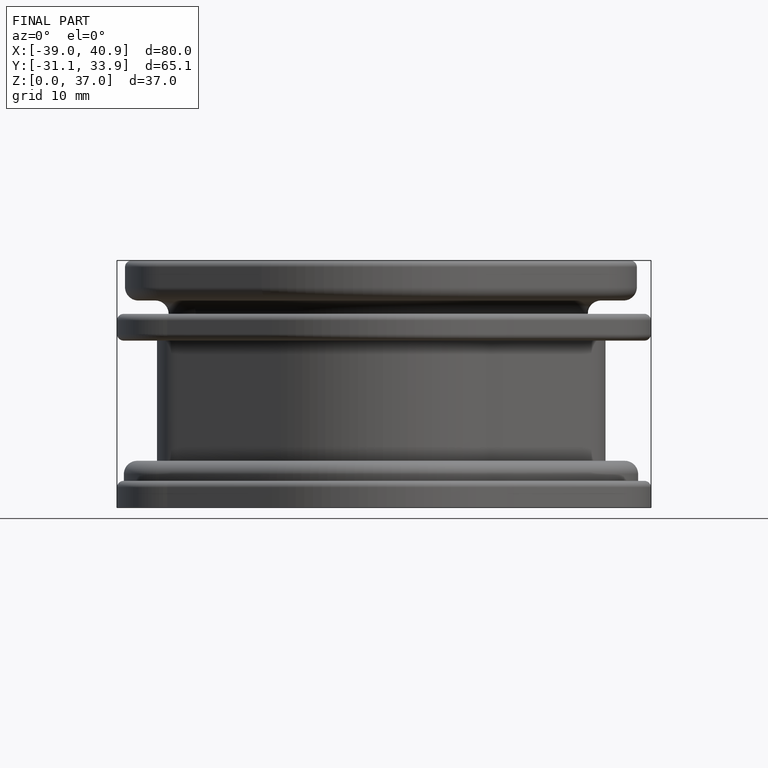
[diagram: finished part — front view with bounding-box wireframe]
